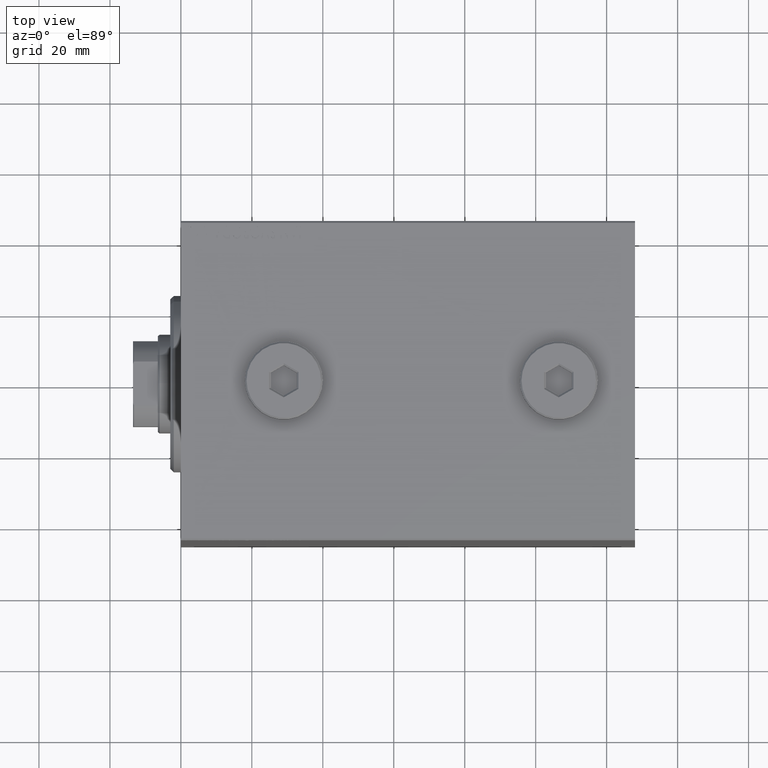
[diagram: clean part render]
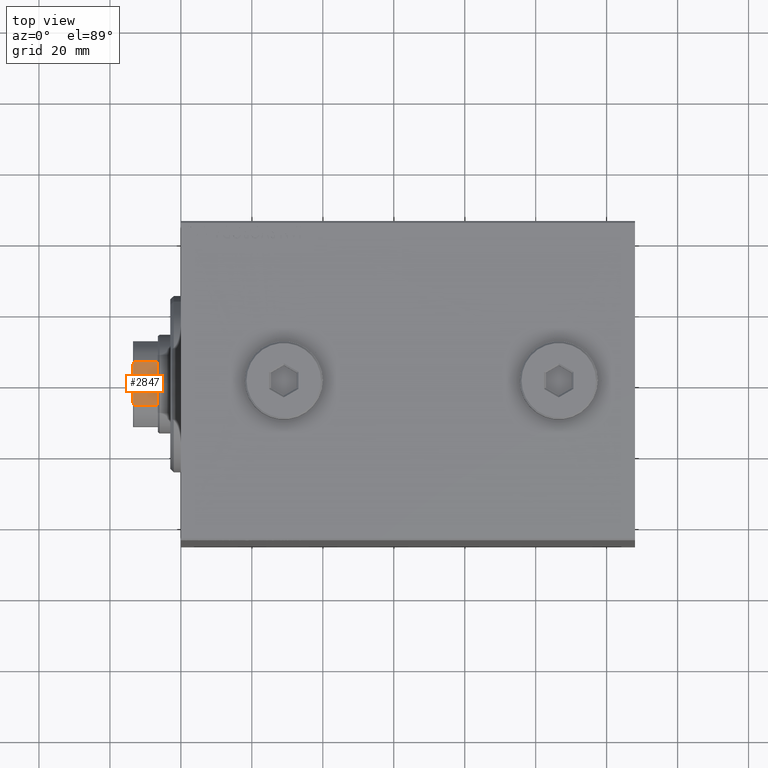
[diagram: same view with one face highlighted and labeled with its STEP entity id]
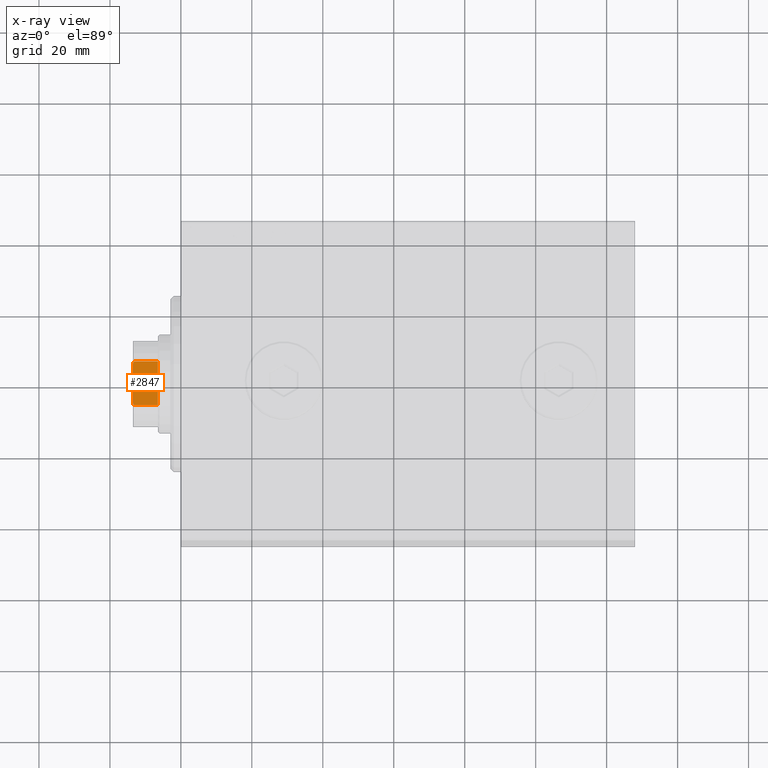
[diagram: x-ray of the same camera — body ghosted, the highlighted face saturated]
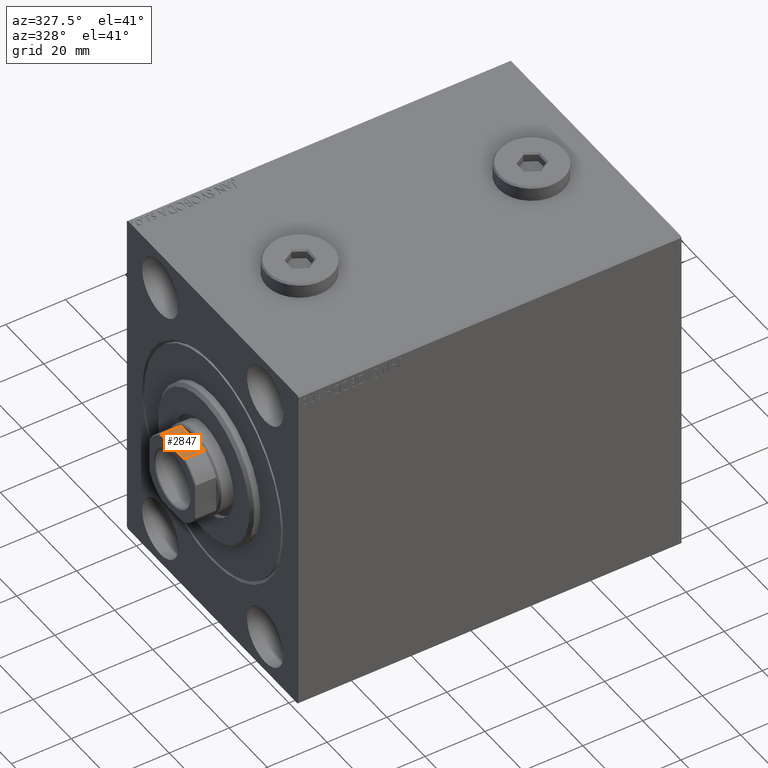
[diagram: same view with one face highlighted and labeled with its STEP entity id]
A machine part, top view. The second image highlights one B-rep face of the part: STEP entity #2847.
The next image is the same camera in x-ray: the body ghosted, the highlighted face saturated — about 0% of this face is hidden behind the body in this view.
A second angle (auxiliary view) of the same face is appended — the face is thin or edge-on in the first view.
In plain terms, the highlighted planar face has unit normal (-0, -0, -1).
Its self-contained STEP definition (entity closure, byte-faithful):
#14 = PLANE ( 'NONE',  #44693 ) ;
#1098 = VERTEX_POINT ( 'NONE', #4797 ) ;
#1329 = CARTESIAN_POINT ( 'NONE',  ( 11.99999999999999645, 5.499090833947124501, 124.0000000000000142 ) ) ;
#2847 = ADVANCED_FACE ( 'NONE', ( #14684 ), #14, .F. ) ;
#4039 = VECTOR ( 'NONE', #25482, 1000.000000000000000 ) ;
#4797 = CARTESIAN_POINT ( 'NONE',  ( 12.00000000000000000, -5.499090833947124501, 124.0000000000000142 ) ) ;
#6902 = CARTESIAN_POINT ( 'NONE',  ( 11.99999999999999645, 11.99999999999999645, 124.0000000000000142 ) ) ;
#10455 = VECTOR ( 'NONE', #24975, 1000.000000000000000 ) ;
#12536 = ORIENTED_EDGE ( 'NONE', *, *, #31771, .T. ) ;
#12557 = CARTESIAN_POINT ( 'NONE',  ( 11.99999999999999645, 5.957846001622756127, 123.8039079593495586 ) ) ;
#12787 = VERTEX_POINT ( 'NONE', #42414 ) ;
#13080 = ORIENTED_EDGE ( 'NONE', *, *, #39192, .F. ) ;
#13938 = ORIENTED_EDGE ( 'NONE', *, *, #29420, .T. ) ;
#14594 = EDGE_CURVE ( 'NONE', #1098, #31178, #39674, .T. ) ;
#14684 = FACE_OUTER_BOUND ( 'NONE', #35402, .T. ) ;
#15011 = CARTESIAN_POINT ( 'NONE',  ( 11.99999999999999645, 6.184658438426501093, 123.7000000000000597 ) ) ;
#18628 = CARTESIAN_POINT ( 'NONE',  ( 11.99999999999999645, 11.99999999999999645, 124.0000000000000142 ) ) ;
#18831 = LINE ( 'NONE', #39644, #33275 ) ;
#19453 = CARTESIAN_POINT ( 'NONE',  ( 11.99999999999999822, 5.729389212963518219, 123.9040582041574368 ) ) ;
#19934 = ORIENTED_EDGE ( 'NONE', *, *, #37035, .T. ) ;
#20492 = ORIENTED_EDGE ( 'NONE', *, *, #14594, .F. ) ;
#21818 = CARTESIAN_POINT ( 'NONE',  ( 11.99999999999999645, -6.184658438426501981, 123.7000000000000597 ) ) ;
#22428 = LINE ( 'NONE', #29052, #28169 ) ;
#24975 = DIRECTION ( 'NONE',  ( -2.168404344971008868E-16, 1.000000000000000000, -0.000000000000000000 ) ) ;
#25482 = DIRECTION ( 'NONE',  ( -2.168404344971008868E-16, 1.000000000000000000, -0.000000000000000000 ) ) ;
#27030 = CARTESIAN_POINT ( 'NONE',  ( 11.99999999999999645, 5.499090833947124501, 124.0000000000000142 ) ) ;
#27336 = B_SPLINE_CURVE_WITH_KNOTS ( 'NONE', 3,
 ( #32708, #12557, #19453, #1329 ),
 .UNSPECIFIED., .F., .F.,
 ( 4, 4 ),
 ( 0.000000000000000000, 0.0007483334419305094458 ),
 .UNSPECIFIED. ) ;
#27401 = ORIENTED_EDGE ( 'NONE', *, *, #38851, .T. ) ;
#27573 = VERTEX_POINT ( 'NONE', #21818 ) ;
#28169 = VECTOR ( 'NONE', #39594, 1000.000000000000000 ) ;
#29052 = CARTESIAN_POINT ( 'NONE',  ( 11.99999999999999645, -6.184658438426501981, -0.001000000000001000089 ) ) ;
#29420 = EDGE_CURVE ( 'NONE', #42451, #12787, #35512, .T. ) ;
#29767 = CARTESIAN_POINT ( 'NONE',  ( 12.00000000000000000, -5.729389212963521771, 123.9040582041574368 ) ) ;
#29986 = CARTESIAN_POINT ( 'NONE',  ( 12.00000000000000000, -5.957846001622755239, 123.8039079593495586 ) ) ;
#31178 = VERTEX_POINT ( 'NONE', #27030 ) ;
#31771 = EDGE_CURVE ( 'NONE', #40508, #31178, #27336, .T. ) ;
#32297 = CARTESIAN_POINT ( 'NONE',  ( 11.99999999999999645, 11.99999999999999645, 117.0000000000000000 ) ) ;
#32708 = CARTESIAN_POINT ( 'NONE',  ( 11.99999999999999645, 6.184658438426501093, 123.7000000000000597 ) ) ;
#33275 = VECTOR ( 'NONE', #39419, 1000.000000000000000 ) ;
#34838 = DIRECTION ( 'NONE',  ( -1.000000000000000000, -2.168404344971008868E-16, 0.000000000000000000 ) ) ;
#35402 = EDGE_LOOP ( 'NONE', ( #27401, #12536, #20492, #19934, #13080, #13938 ) ) ;
#35512 = LINE ( 'NONE', #32297, #10455 ) ;
#36418 = CARTESIAN_POINT ( 'NONE',  ( 11.99999999999999645, -6.184658438426501981, 123.7000000000000597 ) ) ;
#37035 = EDGE_CURVE ( 'NONE', #1098, #27573, #45073, .T. ) ;
#38731 = DIRECTION ( 'NONE',  ( 2.168404344971008868E-16, -1.000000000000000000, 0.000000000000000000 ) ) ;
#38851 = EDGE_CURVE ( 'NONE', #12787, #40508, #18831, .T. ) ;
#39192 = EDGE_CURVE ( 'NONE', #42451, #27573, #22428, .T. ) ;
#39419 = DIRECTION ( 'NONE',  ( -0.000000000000000000, -0.000000000000000000, 1.000000000000000000 ) ) ;
#39594 = DIRECTION ( 'NONE',  ( -0.000000000000000000, -0.000000000000000000, 1.000000000000000000 ) ) ;
#39644 = CARTESIAN_POINT ( 'NONE',  ( 11.99999999999999645, 6.184658438426501093, -0.001000000000001000089 ) ) ;
#39674 = LINE ( 'NONE', #18628, #4039 ) ;
#40319 = CARTESIAN_POINT ( 'NONE',  ( 12.00000000000000000, -5.499090833947124501, 124.0000000000000142 ) ) ;
#40508 = VERTEX_POINT ( 'NONE', #15011 ) ;
#42414 = CARTESIAN_POINT ( 'NONE',  ( 11.99999999999999645, 6.184658438426501093, 117.0000000000000000 ) ) ;
#42451 = VERTEX_POINT ( 'NONE', #42672 ) ;
#42672 = CARTESIAN_POINT ( 'NONE',  ( 11.99999999999999645, -6.184658438426501981, 117.0000000000000000 ) ) ;
#44693 = AXIS2_PLACEMENT_3D ( 'NONE', #6902, #34838, #38731 ) ;
#45073 = B_SPLINE_CURVE_WITH_KNOTS ( 'NONE', 3,
 ( #40319, #29767, #29986, #36418 ),
 .UNSPECIFIED., .F., .F.,
 ( 4, 4 ),
 ( 8.673617379884034509E-19, 0.0007483334419305086868 ),
 .UNSPECIFIED. ) ;